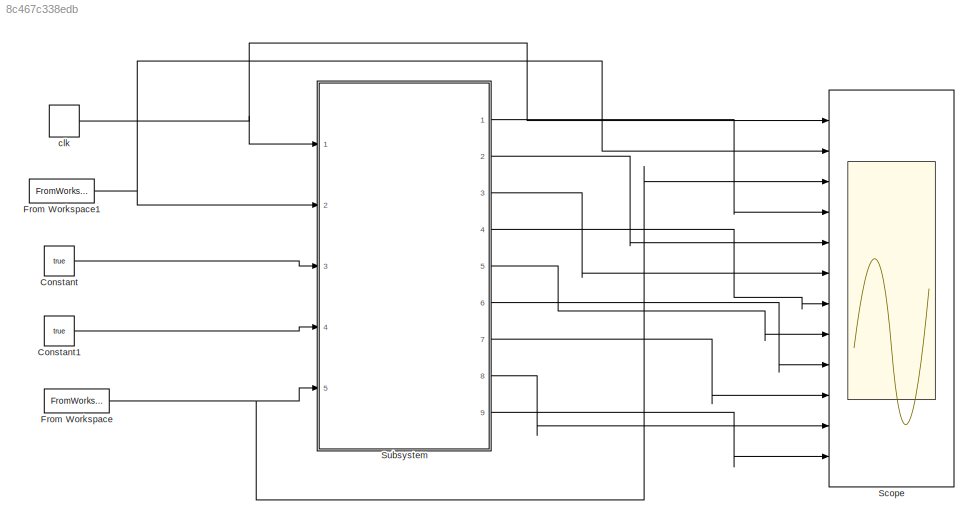
MODEL slx_8c467c338edb
KIND model
CONFIG AbsTol = auto
CONFIG FixedStep = 1
CONFIG MaxStep = auto
CONFIG MinStep = auto
CONFIG RelTol = 1e-3
CONFIG SampleTimeConstraint = Unconstrained
CONFIG Solver = FixedStepDiscrete
CONFIG SolverMode = Auto
CONFIG SolverName = FixedStepDiscrete
CONFIG StartTime = 0.0
CONFIG StopTime = 900
BLOCK [Constant] Constant
  Value = true
BLOCK [Constant] Constant1
  Value = true
BLOCK [FromWorkspace] From Workspace
  SampleTime = 0
  VariableName = array
  ZeroCross = on
BLOCK [FromWorkspace] From Workspace1
  SampleTime = 0
  VariableName = start
  ZeroCross = on
BLOCK [Scope] Scope
  Floating = off
  NumInputPorts = 12
  Ports = [12]
  TimeRange = 900
  YMax = 5~5~5~5~5~5~5~5~5~5~5~5
  YMin = -5~-5~-5~-5~-5~-5~-5~-5~-5~-5~-5~-5
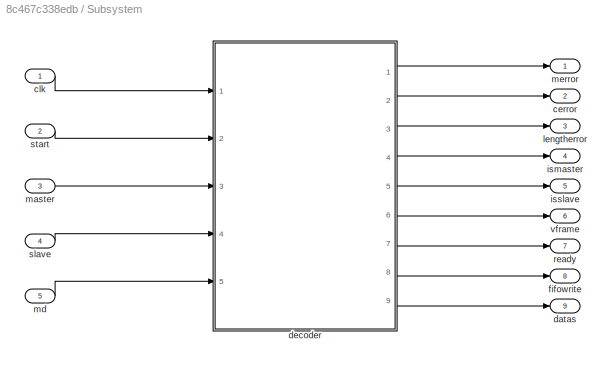
BLOCK [SubSystem] Subsystem
  Ports = [5, 9]
  RequestExecContextInheritance = off
BLOCK [Outport] Subsystem/cerror
  IconDisplay = Port number
  Port = 2
BLOCK [Inport] Subsystem/clk
  IconDisplay = Port number
BLOCK [Outport] Subsystem/datas
  IconDisplay = Port number
  Port = 9
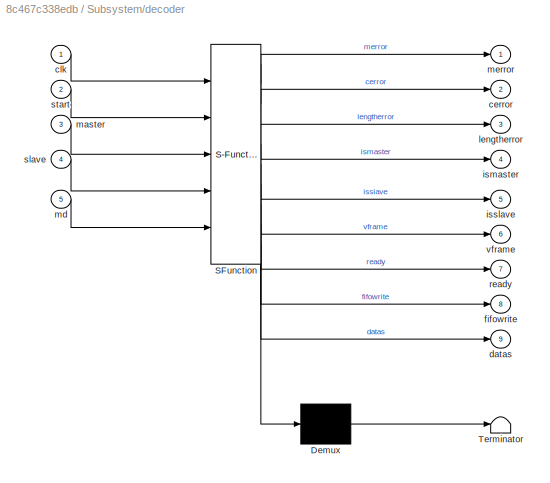
BLOCK [SubSystem] Subsystem/decoder
  ErrorFcn = Stateflow.Translate.translate
  PermitHierarchicalResolution = ExplicitOnly
  Ports = [5, 9]
  RequestExecContextInheritance = off
  SFBlockType = Chart
  TreatAsAtomicUnit = on
BLOCK [Demux] Subsystem/decoder/ Demux 
  Outputs = 1
  Ports = [1, 1]
BLOCK [S-Function] Subsystem/decoder/ SFunction 
  EnableBusSupport = on
  FunctionName = sf_sfun
  PortCounts = [5 10]
  Ports = [5, 10]
  Tag = Stateflow S-Function decoder 3
BLOCK [Terminator] Subsystem/decoder/ Terminator 
BLOCK [Outport] Subsystem/decoder/cerror
  IconDisplay = Port number
  Port = 2
BLOCK [Inport] Subsystem/decoder/clk
  IconDisplay = Port number
BLOCK [Outport] Subsystem/decoder/datas
  IconDisplay = Port number
  Port = 9
BLOCK [Outport] Subsystem/decoder/fifowrite
  IconDisplay = Port number
  Port = 8
BLOCK [Outport] Subsystem/decoder/ismaster
  IconDisplay = Port number
  Port = 4
BLOCK [Outport] Subsystem/decoder/isslave
  IconDisplay = Port number
  Port = 5
BLOCK [Outport] Subsystem/decoder/lengtherror
  IconDisplay = Port number
  Port = 3
BLOCK [Inport] Subsystem/decoder/master
  IconDisplay = Port number
  Port = 3
BLOCK [Inport] Subsystem/decoder/md
  IconDisplay = Port number
  Port = 5
BLOCK [Outport] Subsystem/decoder/merror
  IconDisplay = Port number
BLOCK [Outport] Subsystem/decoder/ready
  IconDisplay = Port number
  Port = 7
BLOCK [Inport] Subsystem/decoder/slave
  IconDisplay = Port number
  Port = 4
BLOCK [Inport] Subsystem/decoder/start
  IconDisplay = Port number
  Port = 2
BLOCK [Outport] Subsystem/decoder/vframe
  IconDisplay = Port number
  Port = 6
BLOCK [Outport] Subsystem/fifowrite
  IconDisplay = Port number
  Port = 8
BLOCK [Outport] Subsystem/ismaster
  IconDisplay = Port number
  Port = 4
BLOCK [Outport] Subsystem/isslave
  IconDisplay = Port number
  Port = 5
BLOCK [Outport] Subsystem/lengtherror
  IconDisplay = Port number
  Port = 3
BLOCK [Inport] Subsystem/master
  IconDisplay = Port number
  Port = 3
BLOCK [Inport] Subsystem/md
  IconDisplay = Port number
  Port = 5
BLOCK [Outport] Subsystem/merror
  IconDisplay = Port number
BLOCK [Outport] Subsystem/ready
  IconDisplay = Port number
  Port = 7
BLOCK [Inport] Subsystem/slave
  IconDisplay = Port number
  Port = 4
BLOCK [Inport] Subsystem/start
  IconDisplay = Port number
  Port = 2
BLOCK [Outport] Subsystem/vframe
  IconDisplay = Port number
  Port = 6
BLOCK [DiscretePulseGenerator] clk
  Amplitude = true
  Ports = [0, 1]
  PulseType = Time based
  PulseWidth = 50
LINE Constant1:1 -> Subsystem:4
LINE Constant:1 -> Subsystem:3
NET From Workspace1:1 -> Scope:2, Subsystem:2
NET From Workspace:1 -> Scope:3, Subsystem:5
LINE Subsystem/clk:1 -> Subsystem/decoder:1
LINE Subsystem/decoder:1 -> Subsystem/merror:1
LINE Subsystem/decoder:2 -> Subsystem/cerror:1
LINE Subsystem/decoder:3 -> Subsystem/lengtherror:1
LINE Subsystem/decoder:4 -> Subsystem/ismaster:1
LINE Subsystem/decoder:5 -> Subsystem/isslave:1
LINE Subsystem/decoder:6 -> Subsystem/vframe:1
LINE Subsystem/decoder:7 -> Subsystem/ready:1
LINE Subsystem/decoder:8 -> Subsystem/fifowrite:1
LINE Subsystem/decoder:9 -> Subsystem/datas:1
LINE Subsystem/master:1 -> Subsystem/decoder:3
LINE Subsystem/md:1 -> Subsystem/decoder:5
LINE Subsystem/slave:1 -> Subsystem/decoder:4
LINE Subsystem/start:1 -> Subsystem/decoder:2
LINE Subsystem:1 -> Scope:4
LINE Subsystem:2 -> Scope:5
LINE Subsystem:3 -> Scope:6
LINE Subsystem:4 -> Scope:7
LINE Subsystem:5 -> Scope:8
LINE Subsystem:6 -> Scope:9
LINE Subsystem:7 -> Scope:10
LINE Subsystem:8 -> Scope:11
LINE Subsystem:9 -> Scope:12
NET clk:1 -> Scope:1, Subsystem:1
note: NET lines group one-source signal fan-out (src -> all destinations, sorted); 1:1 wires keep LINE
CHART Subsystem/decoder states=14 transitions=73
  STATE_LABEL '采样4位以后，开始解码'
  STATE_LABEL 's000\nen:\nmasterframe=false;\nslaveframe=false;\nsample8 = uint8(0);\ndu:\ns000Action();\nexit:\ns000Action();'
  STATE_LABEL 's001'
  STATE_LABEL '[clk==1]\n{\nsample8=sample8+1;\nsAction();\n}'
  STATE_LABEL 's100\n\n'
  STATE_LABEL '[clk==1]\n{\nsample8 = sample8+1;\nsAction();\n}'
  STATE_LABEL 's101\nen:\nsample8 = sample8 + 1;'
  STATE_LABEL 's01\n'
  STATE_LABEL 's00'
  STATE_LABEL '[samples(1)==false &&samples(2)== true &&...\nsamples(3) == false &&samples(4) == true]\n{dataRegisters(3:16) =dataRegisters(1:14);\ndataRegisters(1:2) = [false; false];frameAction();}'
  STATE_LABEL '[samples(1)==false &&samples(2)== true &&...\nsamples(3) == true &&samples(4) == false]\n{dataRegisters(3:16) =dataRegisters(1:14);\ndataRegisters(1:2) = [false,true];frameAction();}'
  STATE_LABEL '[samples(1)==true &&samples(2)== false &&...\nsamples(3) == false &&samples(4) == true]\n{dataRegisters(3:16) = dataRegisters(1:14);\ndataRegisters(1:2) =[true,false];frameAction();}'
  STATE_LABEL '[samples(1)==true &&samples(2)== false &&...\nsamples(3) == true &&samples(4) == false]\n{dataRegisters(3:16) = dataRegisters(1:14);\ndataRegisters(1:2) =  [true,true];frameAction();}'
  STATE_LABEL 's01\n'
  STATE_LABEL 's00'
  STATE_LABEL 's01Action'
  STATE_LABEL '[counter8==0]'
  STATE_LABEL '{\nfifowrite=false;\ndatas(1:16)=[false; false; false; false;...\nfalse; false; false; false; false; false;...\nfalse; false; false; false; false; false];\nismaster=false;\nisslave=false;\n}'
  STATE_LABEL '[total == 4]'
  STATE_LABEL '{total=total+1;\nfifowrite=true;}'
  STATE_LABEL '{total = uint8(0);}'
  STATE_LABEL '[xor(checkcode(2), dataRegisters(10))==true ...\n&& xor(checkcode(3), dataRegisters(11))==true ...\n&& xor(checkcode(4), dataRegisters(12))==true ...\n&& xor(checkcode(5), dataRegisters(13))==true ...\n&& xor(checkcode(6), dataRegisters(14))==true ...\n&& xor(checkcode(7), dataRegisters(15))==true ...\n&& xor(checkcode(8), dataRegisters(16))==true...\n&& xor(xor(xor(xor(xor(xor(xor(xor(checkcode(8), chec...<+135ch>'
  STATE_LABEL '{cerrorflag = true;}'
  STATE_LABEL '[cfl == 16]'
  STATE_LABEL '{cfl = cfl+1}'
  STATE_LABEL '{overflow = true}'
  STATE_LABEL '{\ndataRegisters=[dataRegisters(8);...\ndataRegisters(7); dataRegisters(6); dataRegisters(5);...\ndataRegisters(4);dataRegisters(3);dataRegisters(2);...\ndataRegisters(1);false; false; false; false;...\nfalse; false; false; false];\ncounter8= uint8(4);\ncheckcode=[false; false; false;...\nfalse; false; false; false; false];\nismaster=false;\nisslave=false;\nfifowrite=false;\ndatas=[false; false; false;...\nfal...<+97ch>'
  STATE_LABEL '{\ndatas=dataRegisters;\ncheckcode(1) = xor(xor(xor(xor(xor(xor(xor(xor(xor(xor(xor...\n(xor(xor(xor(xor(xor(dataRegisters(15), dataRegisters(14)), ...\ndataRegisters(13)), dataRegisters(12)), dataRegisters(11)), ...\ndataRegisters(10)), dataRegisters(9)), dataRegisters(8)),...\ndataRegisters(7)), dataRegisters(6)), dataRegisters(5)), ...\ndataRegisters(4)), dataRegisters(3)), dataRegisters(2)), ...\ndata...<+1836ch>'
  STATE_LABEL '{\nmerror=false;\ncerror=false;\nready=false;\nlengtherror=false;\nvframe=false;\n}'
  STATE_LABEL 's010\n\n'
  STATE_LABEL '[clk==1]\n{\nsample8 = sample8+1;\nsAction();\n}'
  STATE_LABEL 's011'
  STATE_LABEL '[clk==1]\n{\nsample8 = sample8+1;\nsAction();\n}'
  STATE_LABEL 's002s000Action'
  STATE_LABEL '[counter8==4]'
  STATE_LABEL '{\nmerror=true;\ncerror=false;\nready=false;\n ismaster=masterframe;\nisslave=slaveframe;\nlengtherror=false;\nvframe=false;\n}'
  STATE_LABEL '[xor(checkcode(2), dataRegisters(2))==true ...\n&& xor(checkcode(3), dataRegisters(3))==true ...\n&& xor(checkcode(4), dataRegisters(4))==true ...\n&& xor(checkcode(5), dataRegisters(5))==true ...\n&& xor(checkcode(6), dataRegisters(6))==true ...\n&& xor(checkcode(7), dataRegisters(7))==true ...\n&& xor(checkcode(8), dataRegisters(8))==true...\n&& xor(xor(xor(xor(xor(xor(xor(xor(checkcode(8), checkcode(7...<+128ch>'
  STATE_LABEL '{\ncerror=true;\nready=false;\nmerror=false;\n}'
  STATE_LABEL '[cerrorflag==false && overflow==false && ...\n(cfl==1 || cfl==2 || cfl==4 || cfl==8 || cfl==16)]'
  STATE_LABEL '{ready=true;}'
